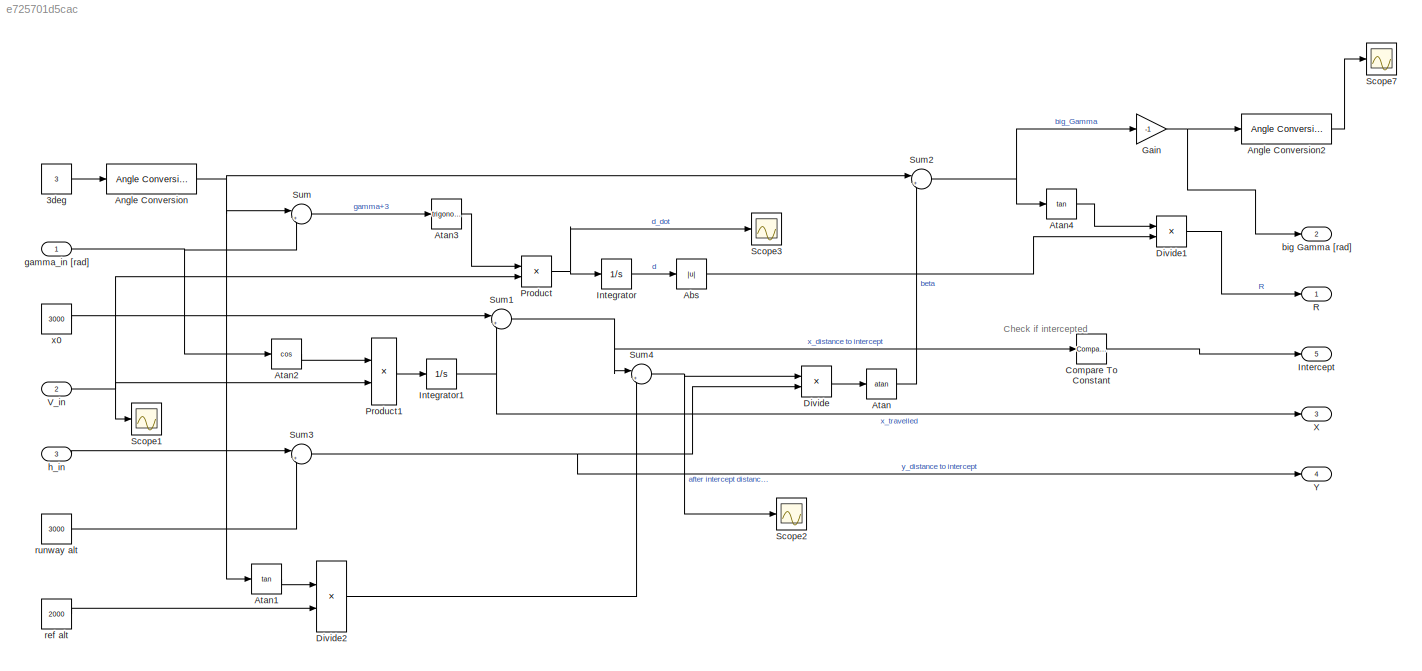
MODEL slx_e725701d5cac
KIND model
CONFIG AbsTol = auto
CONFIG EnableMultiTasking = off
CONFIG FixedStep = auto
CONFIG MaxStep = auto
CONFIG MinStep = auto
CONFIG RelTol = 1e-3
CONFIG SampleTimeConstraint = Unconstrained
CONFIG SolverName = VariableStepAuto
CONFIG StartTime = 0.0
CONFIG StopTime = 10.0
BLOCK [Constant] 3deg
  Value = 3
BLOCK [Abs] Abs
  SaturateOnIntegerOverflow = off
BLOCK [Reference] Angle Conversion  REF=aerolibconvert2/Angle Conversion
  Ports = [1, 1]
  SourceBlock = aerolibconvert2/Angle Conversion
  SourceProductBaseCode = AE
  SourceType = Angle Conversion
BLOCK [Reference] Angle Conversion2  REF=aerolibconvert2/Angle Conversion
  Ports = [1, 1]
  SourceBlock = aerolibconvert2/Angle Conversion
  SourceProductBaseCode = AE
  SourceType = Angle Conversion
BLOCK [Trigonometry] Atan
  Operator = atan
  Ports = [1, 1]
BLOCK [Trigonometry] Atan1
  Operator = tan
  Ports = [1, 1]
BLOCK [Trigonometry] Atan2
  Operator = cos
  Ports = [1, 1]
BLOCK [Trigonometry] Atan3
  Ports = [1, 1]
BLOCK [Trigonometry] Atan4
  Operator = tan
  Ports = [1, 1]
BLOCK [Reference] Compare To Constant  REF=simulink/Logic and Bit
Operations/Compare
To Constant
  Ports = [1, 1]
  SourceBlock = simulink/Logic and Bit\nOperations/Compare\nTo Constant
  SourceProductBaseCode = SL
  SourceType = Compare To Constant
BLOCK [Product] Divide
  Inputs = /*
  Ports = [2, 1]
BLOCK [Product] Divide1
  Inputs = /*
  Ports = [2, 1]
BLOCK [Product] Divide2
  Inputs = /*
  Ports = [2, 1]
BLOCK [Gain] Gain
  Gain = -1
BLOCK [Integrator] Integrator
  Ports = [1, 1]
BLOCK [Integrator] Integrator1
  Ports = [1, 1]
BLOCK [Outport] Intercept
  Port = 5
  SignalName = Intercept
BLOCK [Product] Product
  Ports = [2, 1]
BLOCK [Product] Product1
  Ports = [2, 1]
BLOCK [Outport] R
  SignalName = Slant Range R
BLOCK [Scope] Scope1
  Floating = off
  NumInputPorts = 1
  Ports = [1]
  ScopeSpecificationString = Simulink.scopes.TimeScopeBlockCfg('CurrentConfiguration', extmgr.ConfigurationSet(extmgr.Configuration('Core','General UI',true),extmgr.Configuration('Core','Source UI',true),extmgr.Configuration('Sources','WiredSimulink',true),extmgr.Configuration('Visuals','Time Domain',true,'SerializedDisplays',{struct('MinYLimReal','227.67975','MaxYLimReal','950.88228','YLabelReal','','MinYLimMag','227.67975',...<+1372ch>
BLOCK [Scope] Scope2
  Floating = off
  NumInputPorts = 1
  Ports = [1]
  ScopeSpecificationString = Simulink.scopes.TimeScopeBlockCfg('CurrentConfiguration', extmgr.ConfigurationSet(extmgr.Configuration('Core','General UI',true),extmgr.Configuration('Core','Source UI',true),extmgr.Configuration('Sources','WiredSimulink',true,'DataLoggingVariableName','ScopeData1'),extmgr.Configuration('Visuals','Time Domain',true,'SerializedDisplays',{struct('MinYLimReal','16270.00216','MaxYLimReal','48162.27338...<+1511ch>
BLOCK [Scope] Scope3
  Floating = off
  NumInputPorts = 1
  Ports = [1]
  ScopeSpecificationString = Simulink.scopes.TimeScopeBlockCfg('CurrentConfiguration', extmgr.ConfigurationSet(extmgr.Configuration('Core','General UI',true),extmgr.Configuration('Core','Source UI',true),extmgr.Configuration('Sources','WiredSimulink',true,'DataLoggingVariableName','ScopeData3'),extmgr.Configuration('Visuals','Time Domain',true,'SerializedDisplays',{struct('MinYLimReal','-572.53625','MaxYLimReal','46.24183','Y...<+1464ch>
BLOCK [Scope] Scope7
  Floating = off
  NumInputPorts = 1
  Ports = [1]
  ScopeSpecificationString = Simulink.scopes.TimeScopeBlockCfg('CurrentConfiguration', extmgr.ConfigurationSet(extmgr.Configuration('Core','General UI',true),extmgr.Configuration('Core','Source UI',true),extmgr.Configuration('Sources','WiredSimulink',true,'DataLoggingVariableName','ScopeData2'),extmgr.Configuration('Visuals','Time Domain',true,'SerializedDisplays',{struct('MinYLimReal','-0.26621','MaxYLimReal','0.21296','YLab...<+1416ch>
BLOCK [Sum] Sum
  Inputs = |++
  Ports = [2, 1]
BLOCK [Sum] Sum1
  Inputs = |+-
  Ports = [2, 1]
BLOCK [Sum] Sum2
  Inputs = |+-
  Ports = [2, 1]
BLOCK [Sum] Sum3
  Inputs = |+-
  Ports = [2, 1]
BLOCK [Sum] Sum4
  Inputs = |++
  Ports = [2, 1]
BLOCK [Inport] V_in
  Port = 2
BLOCK [Outport] X
  Port = 3
  SignalName = X
BLOCK [Outport] Y
  Port = 4
  SignalName = Y
BLOCK [Outport] big Gamma [rad]
  Port = 2
  SignalName = Big Gamma
BLOCK [Inport] gamma_in [rad]
BLOCK [Inport] h_in
  Port = 3
BLOCK [Constant] ref alt
  Value = 2000
BLOCK [Constant] runway alt
  Value = 3000
BLOCK [Constant] x0
  Value = 3000
ANNOTATION (root): Check if intercepted
LINE 3deg:1 -> Angle Conversion:1
LINE Abs:1 -> Divide1:2
LINE Angle Conversion2:1 -> Scope7:1
NET Angle Conversion:1 -> Atan1:1, Sum2:1, Sum:1
LINE Atan1:1 -> Divide2:1
LINE Atan2:1 -> Product1:1
LINE Atan3:1 -> Product:1
LINE Atan4:1 -> Divide1:1
LINE Atan:1 -> Sum2:2
LINE Compare To Constant:1 -> Intercept:1
LINE Divide1:1 -> R:1
LINE Divide2:1 -> Sum4:2
LINE Divide:1 -> Atan:1
NET Gain:1 -> Angle Conversion2:1, big Gamma [rad]:1
NET Integrator1:1 -> Sum1:2, X:1
LINE Integrator:1 -> Abs:1
LINE Product1:1 -> Integrator1:1
NET Product:1 -> Integrator:1, Scope3:1
NET Sum1:1 -> Compare To Constant:1, Sum4:1
NET Sum2:1 -> Atan4:1, Gain:1
NET Sum3:1 -> Divide:2, Y:1
NET Sum4:1 -> Divide:1, Scope2:1
LINE Sum:1 -> Atan3:1
NET V_in:1 -> Product1:2, Product:2, Scope1:1
NET gamma_in [rad]:1 -> Atan2:1, Sum:2
LINE h_in:1 -> Sum3:1
LINE ref alt:1 -> Divide2:2
LINE runway alt:1 -> Sum3:2
LINE x0:1 -> Sum1:1
note: NET lines group one-source signal fan-out (src -> all destinations, sorted); 1:1 wires keep LINE
